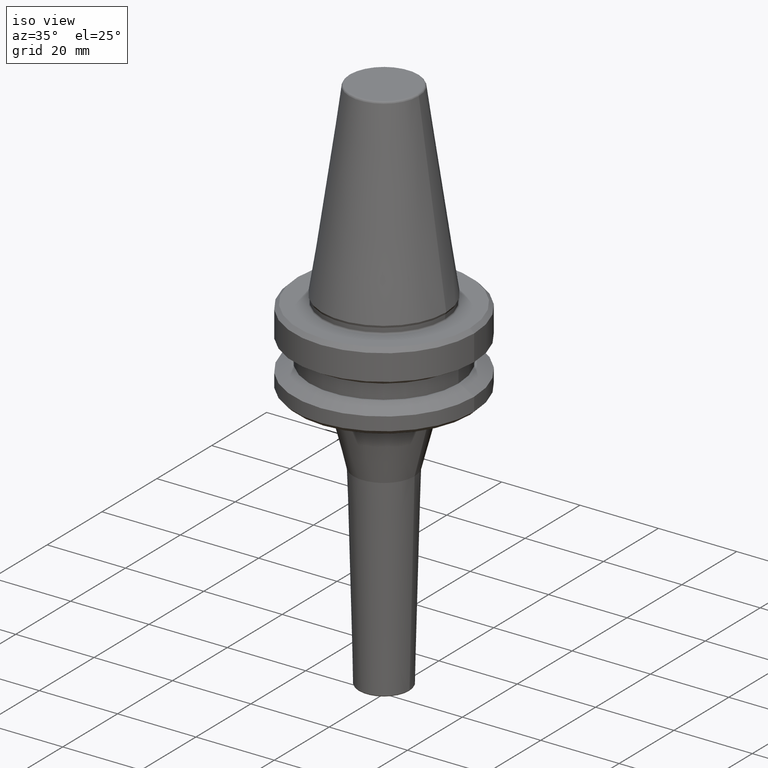
[diagram: clean part render]
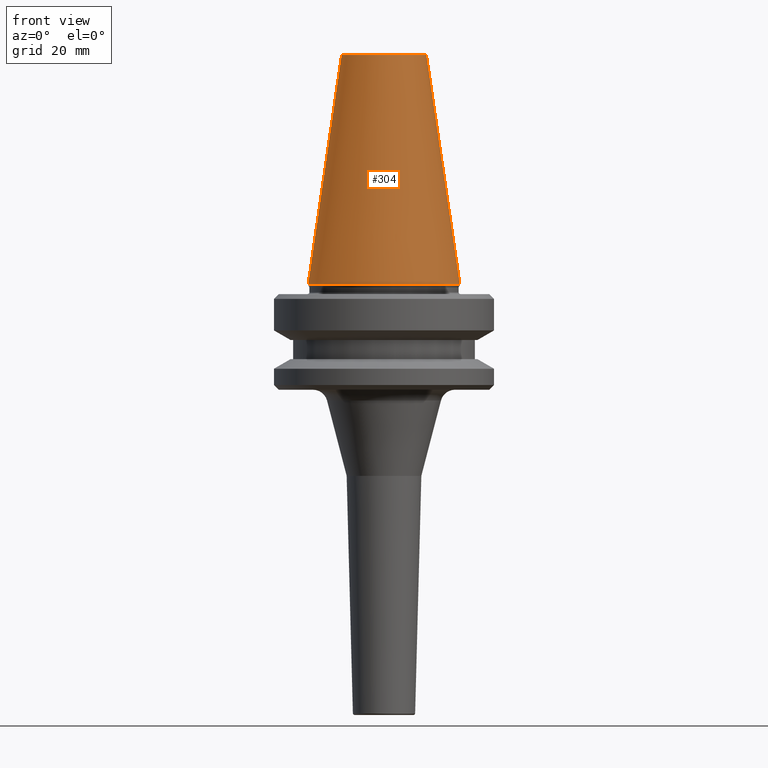
[diagram: tour spotlight — one face highlighted and labeled with its STEP entity id]
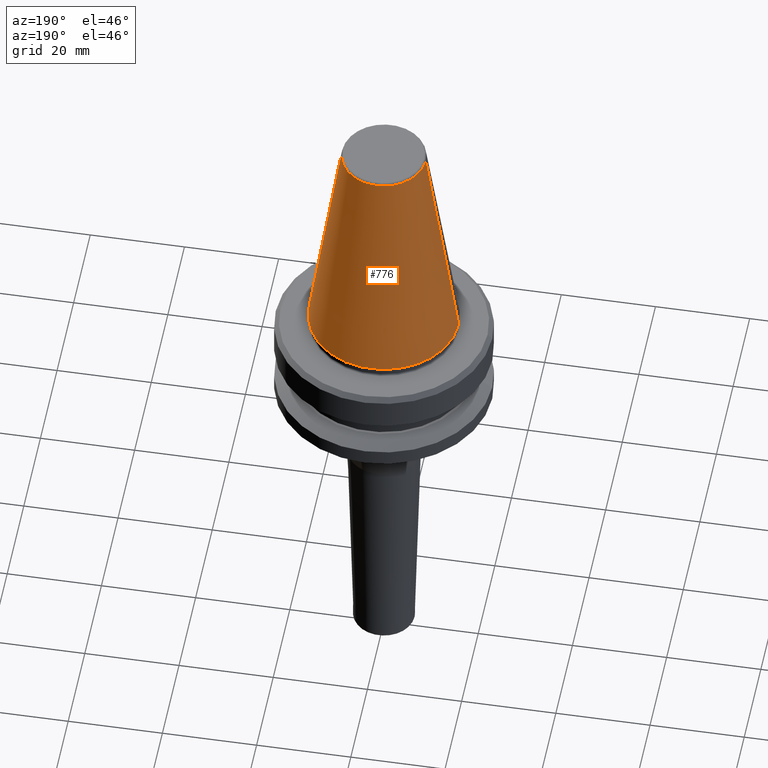
[diagram: tour spotlight — one face highlighted and labeled with its STEP entity id]
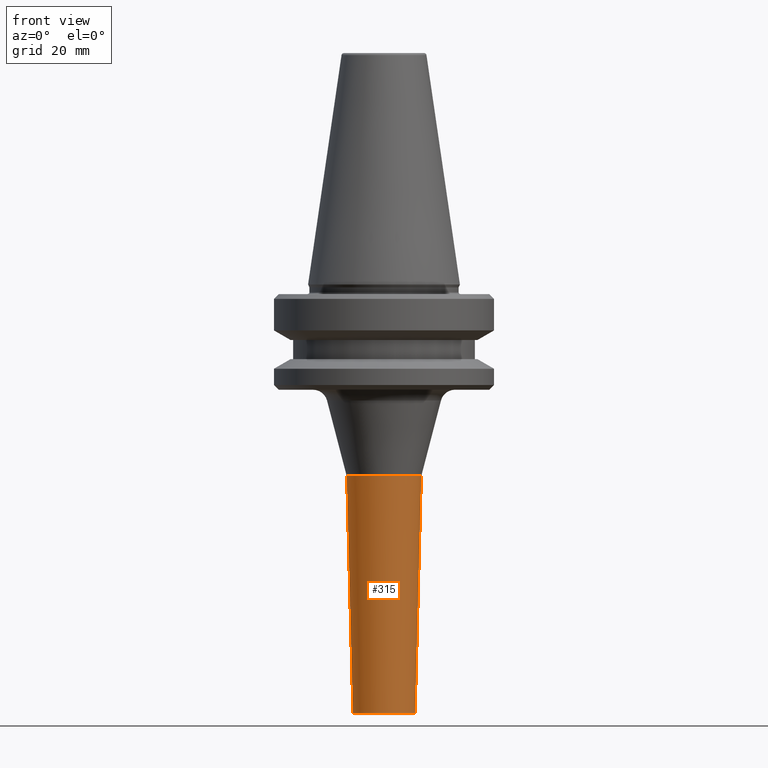
[diagram: tour spotlight — one face highlighted and labeled with its STEP entity id]
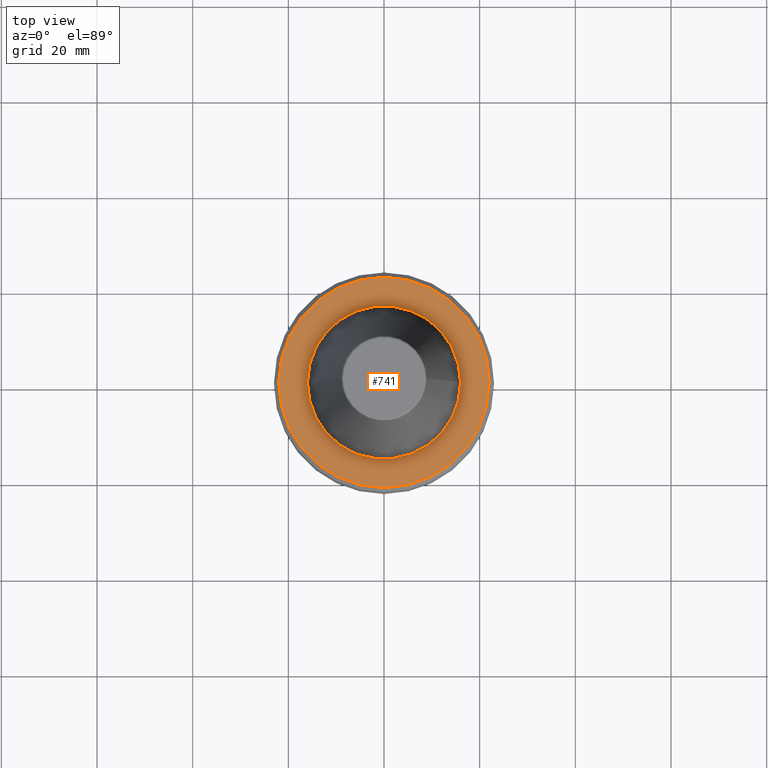
[diagram: tour spotlight — one face highlighted and labeled with its STEP entity id]
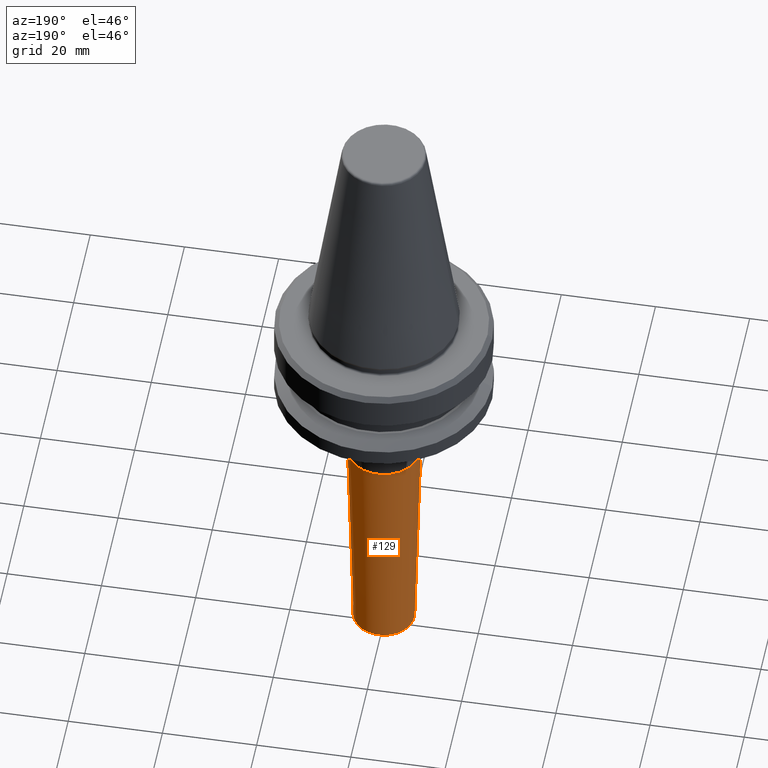
[diagram: tour spotlight — one face highlighted and labeled with its STEP entity id]
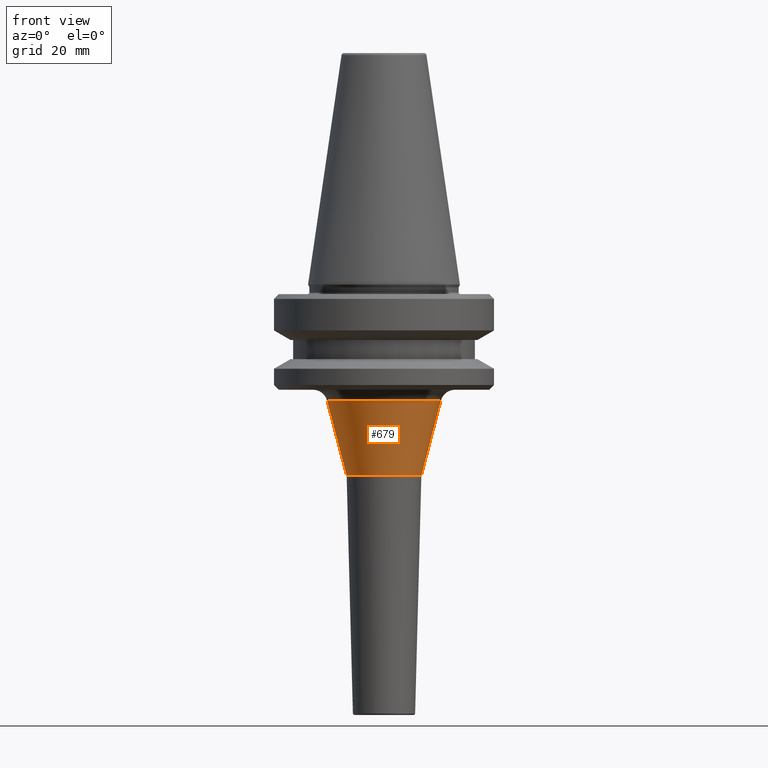
[diagram: tour spotlight — one face highlighted and labeled with its STEP entity id]
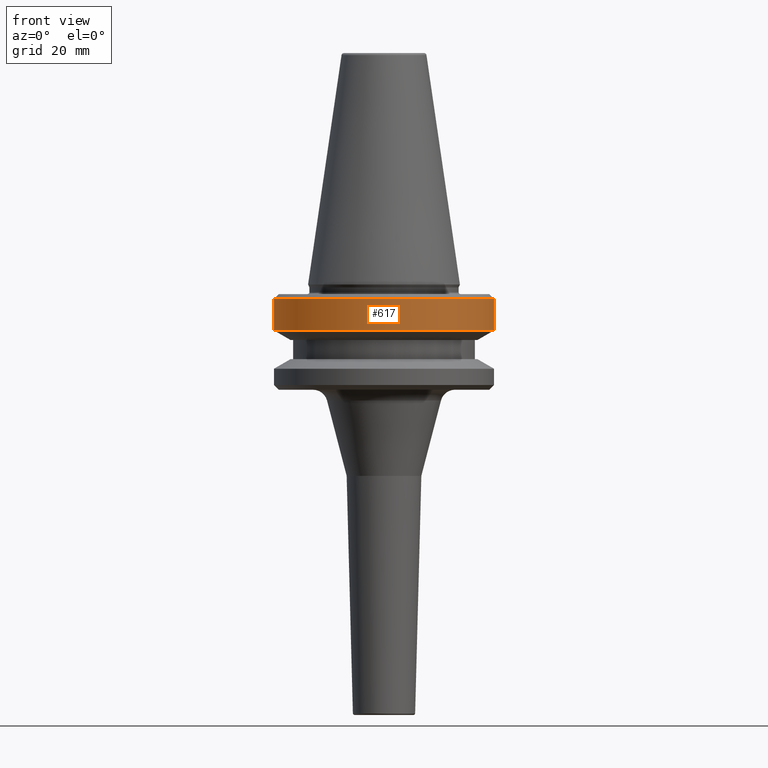
[diagram: tour spotlight — one face highlighted and labeled with its STEP entity id]
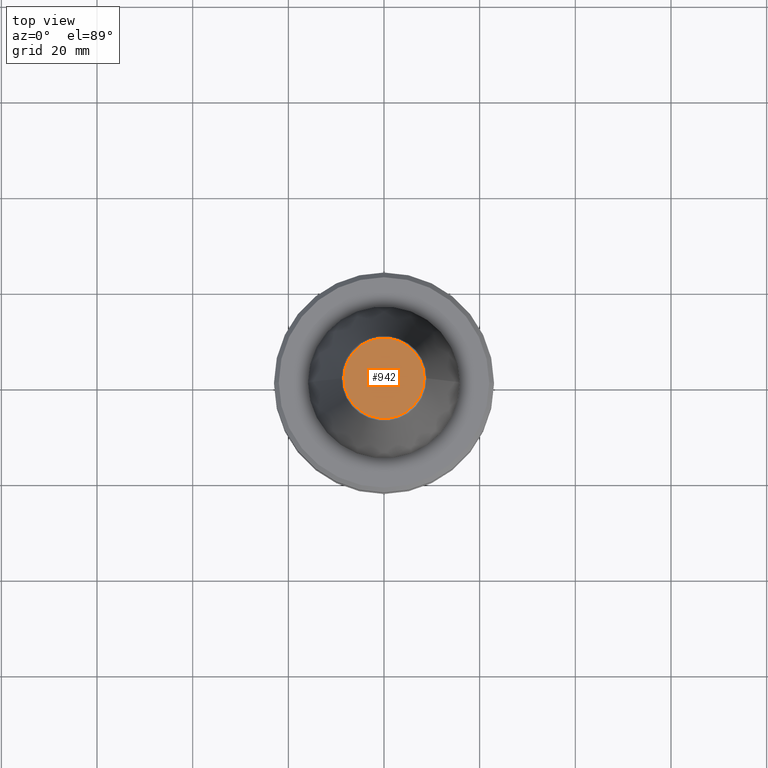
[diagram: tour spotlight — one face highlighted and labeled with its STEP entity id]
A machine part: a face-by-face anatomy tour. The part has 38 B-rep faces; the first image is the clean iso view, then the 8 largest visible faces are spotlighted one at a time (largest first), each with its STEP entity span.

Face 1 — front view, entity #304. In plain terms, the highlighted conical surface has half-angle 8.297 deg.
Definition (entity closure, byte-faithful):
#1 = CIRCLE ( 'NONE', #175, 15.87500000000002800 ) ;
#11 = CIRCLE ( 'NONE', #629, 8.878994820583560700 ) ;
#114 = VECTOR ( 'NONE', #711, 1000.000000000000100 ) ;
#133 = DIRECTION ( 'NONE',  ( 1.000000000000000000, 0.0000000000000000000, 0.0000000000000000000 ) ) ;
#166 = DIRECTION ( 'NONE',  ( 0.0000000000000000000, 0.0000000000000000000, -1.000000000000000000 ) ) ;
#175 = AXIS2_PLACEMENT_3D ( 'NONE', #1046, #481, #876 ) ;
#179 = EDGE_CURVE ( 'NONE', #1000, #436, #330, .T. ) ;
#205 = FACE_OUTER_BOUND ( 'NONE', #483, .T. ) ;
#262 = CARTESIAN_POINT ( 'NONE',  ( -15.87500000000002800, 1.944126793646426800E-015, 0.0000000000000000000 ) ) ;
#283 = ORIENTED_EDGE ( 'NONE', *, *, #431, .T. ) ;
#286 = DIRECTION ( 'NONE',  ( -0.0000000000000000000, -0.0000000000000000000, 1.000000000000000000 ) ) ;
#304 = ADVANCED_FACE ( 'NONE', ( #205 ), #519, .T. ) ;
#317 = CARTESIAN_POINT ( 'NONE',  ( 15.87500000000002800, 1.944126793646426800E-015, 0.0000000000000000000 ) ) ;
#330 = LINE ( 'NONE', #966, #114 ) ;
#337 = VECTOR ( 'NONE', #952, 1000.000000000000100 ) ;
#353 = EDGE_CURVE ( 'NONE', #755, #1028, #592, .T. ) ;
#413 = ORIENTED_EDGE ( 'NONE', *, *, #179, .T. ) ;
#431 = EDGE_CURVE ( 'NONE', #436, #1028, #1, .T. ) ;
#436 = VERTEX_POINT ( 'NONE', #262 ) ;
#481 = DIRECTION ( 'NONE',  ( -0.0000000000000000000, -0.0000000000000000000, 1.000000000000000000 ) ) ;
#483 = EDGE_LOOP ( 'NONE', ( #893, #634, #413, #283 ) ) ;
#519 = CONICAL_SURFACE ( 'NONE', #669, 15.87500000000002800, 0.1448138461595632500 ) ;
#521 = CARTESIAN_POINT ( 'NONE',  ( 15.87500000000002800, 0.0000000000000000000, 0.0000000000000000000 ) ) ;
#567 = DIRECTION ( 'NONE',  ( -1.000000000000000000, 0.0000000000000000000, 0.0000000000000000000 ) ) ;
#592 = LINE ( 'NONE', #317, #337 ) ;
#629 = AXIS2_PLACEMENT_3D ( 'NONE', #831, #286, #133 ) ;
#633 = CARTESIAN_POINT ( 'NONE',  ( 0.0000000000000000000, 0.0000000000000000000, 0.0000000000000000000 ) ) ;
#634 = ORIENTED_EDGE ( 'NONE', *, *, #659, .F. ) ;
#659 = EDGE_CURVE ( 'NONE', #1000, #755, #11, .T. ) ;
#669 = AXIS2_PLACEMENT_3D ( 'NONE', #633, #166, #567 ) ;
#680 = CARTESIAN_POINT ( 'NONE',  ( 8.878994820583560700, 1.515745026156892700E-015, 47.97215411344124900 ) ) ;
#711 = DIRECTION ( 'NONE',  ( -0.1443082268835109400, 0.0000000000000000000, -0.9895327865481451400 ) ) ;
#755 = VERTEX_POINT ( 'NONE', #680 ) ;
#831 = CARTESIAN_POINT ( 'NONE',  ( 0.0000000000000000000, 0.0000000000000000000, 47.97215411344124900 ) ) ;
#876 = DIRECTION ( 'NONE',  ( 1.000000000000000000, 0.0000000000000000000, 0.0000000000000000000 ) ) ;
#893 = ORIENTED_EDGE ( 'NONE', *, *, #353, .F. ) ;
#952 = DIRECTION ( 'NONE',  ( 0.1443082268835109400, 1.767266081435217000E-017, -0.9895327865481451400 ) ) ;
#966 = CARTESIAN_POINT ( 'NONE',  ( -15.87500000000002800, 0.0000000000000000000, 0.0000000000000000000 ) ) ;
#1000 = VERTEX_POINT ( 'NONE', #1004 ) ;
#1004 = CARTESIAN_POINT ( 'NONE',  ( -8.878994820583560700, 0.0000000000000000000, 47.97215411344124900 ) ) ;
#1028 = VERTEX_POINT ( 'NONE', #521 ) ;
#1046 = CARTESIAN_POINT ( 'NONE',  ( 0.0000000000000000000, 0.0000000000000000000, 0.0000000000000000000 ) ) ;

Face 2 — auxiliary view, entity #776. In plain terms, the highlighted conical surface has half-angle 8.297 deg.
Definition (entity closure, byte-faithful):
#40 = ORIENTED_EDGE ( 'NONE', *, *, #268, .T. ) ;
#114 = VECTOR ( 'NONE', #711, 1000.000000000000100 ) ;
#119 = EDGE_CURVE ( 'NONE', #755, #1000, #586, .T. ) ;
#121 = CONICAL_SURFACE ( 'NONE', #267, 15.87500000000002800, 0.1448138461595632500 ) ;
#150 = AXIS2_PLACEMENT_3D ( 'NONE', #676, #557, #1041 ) ;
#179 = EDGE_CURVE ( 'NONE', #1000, #436, #330, .T. ) ;
#258 = CIRCLE ( 'NONE', #367, 15.87500000000002800 ) ;
#262 = CARTESIAN_POINT ( 'NONE',  ( -15.87500000000002800, 1.944126793646426800E-015, 0.0000000000000000000 ) ) ;
#267 = AXIS2_PLACEMENT_3D ( 'NONE', #531, #610, #683 ) ;
#268 = EDGE_CURVE ( 'NONE', #1028, #436, #258, .T. ) ;
#317 = CARTESIAN_POINT ( 'NONE',  ( 15.87500000000002800, 1.944126793646426800E-015, 0.0000000000000000000 ) ) ;
#330 = LINE ( 'NONE', #966, #114 ) ;
#337 = VECTOR ( 'NONE', #952, 1000.000000000000100 ) ;
#351 = ORIENTED_EDGE ( 'NONE', *, *, #353, .T. ) ;
#353 = EDGE_CURVE ( 'NONE', #755, #1028, #592, .T. ) ;
#367 = AXIS2_PLACEMENT_3D ( 'NONE', #970, #412, #866 ) ;
#412 = DIRECTION ( 'NONE',  ( -0.0000000000000000000, -0.0000000000000000000, 1.000000000000000000 ) ) ;
#425 = ORIENTED_EDGE ( 'NONE', *, *, #119, .F. ) ;
#434 = FACE_OUTER_BOUND ( 'NONE', #579, .T. ) ;
#436 = VERTEX_POINT ( 'NONE', #262 ) ;
#521 = CARTESIAN_POINT ( 'NONE',  ( 15.87500000000002800, 0.0000000000000000000, 0.0000000000000000000 ) ) ;
#531 = CARTESIAN_POINT ( 'NONE',  ( 0.0000000000000000000, 0.0000000000000000000, 0.0000000000000000000 ) ) ;
#557 = DIRECTION ( 'NONE',  ( -0.0000000000000000000, -0.0000000000000000000, 1.000000000000000000 ) ) ;
#579 = EDGE_LOOP ( 'NONE', ( #425, #351, #40, #963 ) ) ;
#586 = CIRCLE ( 'NONE', #150, 8.878994820583560700 ) ;
#592 = LINE ( 'NONE', #317, #337 ) ;
#610 = DIRECTION ( 'NONE',  ( 0.0000000000000000000, 0.0000000000000000000, -1.000000000000000000 ) ) ;
#676 = CARTESIAN_POINT ( 'NONE',  ( 0.0000000000000000000, 0.0000000000000000000, 47.97215411344124900 ) ) ;
#680 = CARTESIAN_POINT ( 'NONE',  ( 8.878994820583560700, 1.515745026156892700E-015, 47.97215411344124900 ) ) ;
#683 = DIRECTION ( 'NONE',  ( -1.000000000000000000, 0.0000000000000000000, 0.0000000000000000000 ) ) ;
#711 = DIRECTION ( 'NONE',  ( -0.1443082268835109400, 0.0000000000000000000, -0.9895327865481451400 ) ) ;
#755 = VERTEX_POINT ( 'NONE', #680 ) ;
#776 = ADVANCED_FACE ( 'NONE', ( #434 ), #121, .T. ) ;
#866 = DIRECTION ( 'NONE',  ( 1.000000000000000000, 0.0000000000000000000, 0.0000000000000000000 ) ) ;
#952 = DIRECTION ( 'NONE',  ( 0.1443082268835109400, 1.767266081435217000E-017, -0.9895327865481451400 ) ) ;
#963 = ORIENTED_EDGE ( 'NONE', *, *, #179, .F. ) ;
#966 = CARTESIAN_POINT ( 'NONE',  ( -15.87500000000002800, 0.0000000000000000000, 0.0000000000000000000 ) ) ;
#970 = CARTESIAN_POINT ( 'NONE',  ( 0.0000000000000000000, 0.0000000000000000000, 0.0000000000000000000 ) ) ;
#1000 = VERTEX_POINT ( 'NONE', #1004 ) ;
#1004 = CARTESIAN_POINT ( 'NONE',  ( -8.878994820583560700, 0.0000000000000000000, 47.97215411344124900 ) ) ;
#1028 = VERTEX_POINT ( 'NONE', #521 ) ;
#1041 = DIRECTION ( 'NONE',  ( 1.000000000000000000, 0.0000000000000000000, 0.0000000000000000000 ) ) ;

Face 3 — front view, entity #315. In plain terms, the highlighted conical surface has half-angle 1.5 deg.
Definition (entity closure, byte-faithful):
#19 = DIRECTION ( 'NONE',  ( -0.0000000000000000000, -0.0000000000000000000, 1.000000000000000000 ) ) ;
#21 = DIRECTION ( 'NONE',  ( 1.000000000000000000, 0.0000000000000000000, 0.0000000000000000000 ) ) ;
#28 = EDGE_LOOP ( 'NONE', ( #58, #892, #366, #618 ) ) ;
#58 = ORIENTED_EDGE ( 'NONE', *, *, #72, .F. ) ;
#72 = EDGE_CURVE ( 'NONE', #646, #471, #402, .T. ) ;
#103 = VERTEX_POINT ( 'NONE', #561 ) ;
#170 = CIRCLE ( 'NONE', #240, 7.809296078459246000 ) ;
#177 = DIRECTION ( 'NONE',  ( 1.000000000000000000, 0.0000000000000000000, 0.0000000000000000000 ) ) ;
#182 = CARTESIAN_POINT ( 'NONE',  ( 0.0000000000000000000, 0.0000000000000000000, -89.67947039659931400 ) ) ;
#240 = AXIS2_PLACEMENT_3D ( 'NONE', #435, #355, #21 ) ;
#255 = DIRECTION ( 'NONE',  ( -0.02617694830787338800, 3.205751595668287100E-018, 0.9996573249755572600 ) ) ;
#315 = ADVANCED_FACE ( 'NONE', ( #974 ), #972, .T. ) ;
#318 = VERTEX_POINT ( 'NONE', #872 ) ;
#355 = DIRECTION ( 'NONE',  ( -0.0000000000000000000, -0.0000000000000000000, 1.000000000000000000 ) ) ;
#358 = DIRECTION ( 'NONE',  ( 1.000000000000000000, 0.0000000000000000000, 0.0000000000000000000 ) ) ;
#366 = ORIENTED_EDGE ( 'NONE', *, *, #857, .T. ) ;
#388 = DIRECTION ( 'NONE',  ( 0.02617694830787338800, 0.0000000000000000000, 0.9996573249755572600 ) ) ;
#402 = LINE ( 'NONE', #407, #424 ) ;
#407 = CARTESIAN_POINT ( 'NONE',  ( -6.508393363055142300, 7.970483099657357400E-016, -89.67947039659931400 ) ) ;
#424 = VECTOR ( 'NONE', #255, 1000.000000000000200 ) ;
#433 = CARTESIAN_POINT ( 'NONE',  ( 0.0000000000000000000, 0.0000000000000000000, -89.67947039659931400 ) ) ;
#435 = CARTESIAN_POINT ( 'NONE',  ( 0.0000000000000000000, 0.0000000000000000000, -40.00000000000003600 ) ) ;
#471 = VERTEX_POINT ( 'NONE', #558 ) ;
#558 = CARTESIAN_POINT ( 'NONE',  ( -7.809296078459246000, 9.563629446079093900E-016, -40.00000000000003600 ) ) ;
#561 = CARTESIAN_POINT ( 'NONE',  ( 6.508393363055141400, 0.0000000000000000000, -89.67947039659931400 ) ) ;
#573 = EDGE_CURVE ( 'NONE', #471, #318, #170, .T. ) ;
#600 = CARTESIAN_POINT ( 'NONE',  ( -6.508393363055141400, 7.970483099657356400E-016, -89.67947039659931400 ) ) ;
#611 = EDGE_CURVE ( 'NONE', #646, #103, #899, .T. ) ;
#618 = ORIENTED_EDGE ( 'NONE', *, *, #573, .F. ) ;
#637 = AXIS2_PLACEMENT_3D ( 'NONE', #433, #19, #358 ) ;
#646 = VERTEX_POINT ( 'NONE', #600 ) ;
#704 = DIRECTION ( 'NONE',  ( -0.0000000000000000000, -0.0000000000000000000, 1.000000000000000000 ) ) ;
#813 = VECTOR ( 'NONE', #388, 1000.000000000000200 ) ;
#857 = EDGE_CURVE ( 'NONE', #103, #318, #886, .T. ) ;
#872 = CARTESIAN_POINT ( 'NONE',  ( 7.809296078459246000, 0.0000000000000000000, -40.00000000000003600 ) ) ;
#886 = LINE ( 'NONE', #941, #813 ) ;
#892 = ORIENTED_EDGE ( 'NONE', *, *, #611, .T. ) ;
#899 = CIRCLE ( 'NONE', #637, 6.508393363055142300 ) ;
#941 = CARTESIAN_POINT ( 'NONE',  ( 6.508393363055142300, 0.0000000000000000000, -89.67947039659931400 ) ) ;
#944 = AXIS2_PLACEMENT_3D ( 'NONE', #182, #704, #177 ) ;
#972 = CONICAL_SURFACE ( 'NONE', #944, 6.508393363055142300, 0.02617993877991518100 ) ;
#974 = FACE_OUTER_BOUND ( 'NONE', #28, .T. ) ;

Face 4 — top view, entity #741. In plain terms, the highlighted planar face has unit normal (0, 0, -1).
Definition (entity closure, byte-faithful):
#2 = EDGE_LOOP ( 'NONE', ( #732, #693 ) ) ;
#38 = CIRCLE ( 'NONE', #343, 16.00000000000045800 ) ;
#39 = CIRCLE ( 'NONE', #798, 22.00000000000002100 ) ;
#47 = CARTESIAN_POINT ( 'NONE',  ( 0.0000000000000000000, 0.0000000000000000000, -2.000000000000223800 ) ) ;
#78 = CARTESIAN_POINT ( 'NONE',  ( 0.0000000000000000000, 0.0000000000000000000, -2.000000000000223800 ) ) ;
#96 = EDGE_CURVE ( 'NONE', #520, #817, #38, .T. ) ;
#136 = CARTESIAN_POINT ( 'NONE',  ( 16.00000000000054000, 0.0000000000000000000, -2.000000000000244700 ) ) ;
#137 = CIRCLE ( 'NONE', #202, 16.00000000000045800 ) ;
#165 = AXIS2_PLACEMENT_3D ( 'NONE', #373, #926, #457 ) ;
#202 = AXIS2_PLACEMENT_3D ( 'NONE', #450, #1006, #527 ) ;
#207 = EDGE_LOOP ( 'NONE', ( #882, #236 ) ) ;
#228 = PLANE ( 'NONE',  #275 ) ;
#236 = ORIENTED_EDGE ( 'NONE', *, *, #757, .T. ) ;
#275 = AXIS2_PLACEMENT_3D ( 'NONE', #937, #867, #1033 ) ;
#309 = CARTESIAN_POINT ( 'NONE',  ( -22.00000000000002100, 0.0000000000000000000, -2.000000000000223800 ) ) ;
#343 = AXIS2_PLACEMENT_3D ( 'NONE', #47, #858, #410 ) ;
#373 = CARTESIAN_POINT ( 'NONE',  ( 0.0000000000000000000, 0.0000000000000000000, -2.000000000000223800 ) ) ;
#397 = DIRECTION ( 'NONE',  ( -0.0000000000000000000, -0.0000000000000000000, 1.000000000000000000 ) ) ;
#410 = DIRECTION ( 'NONE',  ( 1.000000000000000000, 0.0000000000000000000, 0.0000000000000000000 ) ) ;
#427 = CARTESIAN_POINT ( 'NONE',  ( -16.00000000000054000, 1.959434878635831400E-015, -2.000000000000244700 ) ) ;
#447 = EDGE_CURVE ( 'NONE', #842, #868, #39, .T. ) ;
#450 = CARTESIAN_POINT ( 'NONE',  ( 0.0000000000000000000, 0.0000000000000000000, -2.000000000000223800 ) ) ;
#457 = DIRECTION ( 'NONE',  ( 1.000000000000000000, 0.0000000000000000000, 0.0000000000000000000 ) ) ;
#467 = CIRCLE ( 'NONE', #165, 22.00000000000002100 ) ;
#497 = DIRECTION ( 'NONE',  ( 1.000000000000000000, 0.0000000000000000000, 0.0000000000000000000 ) ) ;
#520 = VERTEX_POINT ( 'NONE', #427 ) ;
#527 = DIRECTION ( 'NONE',  ( 1.000000000000000000, 0.0000000000000000000, 0.0000000000000000000 ) ) ;
#688 = FACE_OUTER_BOUND ( 'NONE', #207, .T. ) ;
#693 = ORIENTED_EDGE ( 'NONE', *, *, #96, .F. ) ;
#732 = ORIENTED_EDGE ( 'NONE', *, *, #1030, .F. ) ;
#741 = ADVANCED_FACE ( 'NONE', ( #875, #688 ), #228, .F. ) ;
#757 = EDGE_CURVE ( 'NONE', #868, #842, #467, .T. ) ;
#798 = AXIS2_PLACEMENT_3D ( 'NONE', #78, #397, #497 ) ;
#817 = VERTEX_POINT ( 'NONE', #136 ) ;
#842 = VERTEX_POINT ( 'NONE', #309 ) ;
#858 = DIRECTION ( 'NONE',  ( -0.0000000000000000000, -0.0000000000000000000, 1.000000000000000000 ) ) ;
#867 = DIRECTION ( 'NONE',  ( 0.0000000000000000000, 0.0000000000000000000, -1.000000000000000000 ) ) ;
#868 = VERTEX_POINT ( 'NONE', #1027 ) ;
#875 = FACE_BOUND ( 'NONE', #2, .T. ) ;
#882 = ORIENTED_EDGE ( 'NONE', *, *, #447, .T. ) ;
#926 = DIRECTION ( 'NONE',  ( -0.0000000000000000000, -0.0000000000000000000, 1.000000000000000000 ) ) ;
#937 = CARTESIAN_POINT ( 'NONE',  ( 0.0000000000000000000, 22.00000000000002100, -2.000000000000223800 ) ) ;
#1006 = DIRECTION ( 'NONE',  ( -0.0000000000000000000, -0.0000000000000000000, 1.000000000000000000 ) ) ;
#1027 = CARTESIAN_POINT ( 'NONE',  ( 22.00000000000002100, 2.755455298081547100E-015, -2.000000000000223800 ) ) ;
#1030 = EDGE_CURVE ( 'NONE', #817, #520, #137, .T. ) ;
#1033 = DIRECTION ( 'NONE',  ( -1.000000000000000000, 0.0000000000000000000, -0.0000000000000000000 ) ) ;

Face 5 — auxiliary view, entity #129. In plain terms, the highlighted conical surface has half-angle 1.5 deg.
Definition (entity closure, byte-faithful):
#26 = ORIENTED_EDGE ( 'NONE', *, *, #674, .T. ) ;
#72 = EDGE_CURVE ( 'NONE', #646, #471, #402, .T. ) ;
#103 = VERTEX_POINT ( 'NONE', #561 ) ;
#129 = ADVANCED_FACE ( 'NONE', ( #801 ), #349, .T. ) ;
#131 = DIRECTION ( 'NONE',  ( -0.0000000000000000000, -0.0000000000000000000, 1.000000000000000000 ) ) ;
#139 = DIRECTION ( 'NONE',  ( -0.0000000000000000000, -0.0000000000000000000, 1.000000000000000000 ) ) ;
#255 = DIRECTION ( 'NONE',  ( -0.02617694830787338800, 3.205751595668287100E-018, 0.9996573249755572600 ) ) ;
#299 = CIRCLE ( 'NONE', #929, 7.809296078459246000 ) ;
#318 = VERTEX_POINT ( 'NONE', #872 ) ;
#349 = CONICAL_SURFACE ( 'NONE', #740, 6.508393363055142300, 0.02617993877991518100 ) ;
#371 = DIRECTION ( 'NONE',  ( 1.000000000000000000, 0.0000000000000000000, 0.0000000000000000000 ) ) ;
#388 = DIRECTION ( 'NONE',  ( 0.02617694830787338800, 0.0000000000000000000, 0.9996573249755572600 ) ) ;
#402 = LINE ( 'NONE', #407, #424 ) ;
#407 = CARTESIAN_POINT ( 'NONE',  ( -6.508393363055142300, 7.970483099657357400E-016, -89.67947039659931400 ) ) ;
#424 = VECTOR ( 'NONE', #255, 1000.000000000000200 ) ;
#444 = CARTESIAN_POINT ( 'NONE',  ( 0.0000000000000000000, 0.0000000000000000000, -89.67947039659931400 ) ) ;
#453 = ORIENTED_EDGE ( 'NONE', *, *, #682, .F. ) ;
#469 = CARTESIAN_POINT ( 'NONE',  ( 0.0000000000000000000, 0.0000000000000000000, -40.00000000000003600 ) ) ;
#471 = VERTEX_POINT ( 'NONE', #558 ) ;
#487 = CARTESIAN_POINT ( 'NONE',  ( 0.0000000000000000000, 0.0000000000000000000, -89.67947039659931400 ) ) ;
#558 = CARTESIAN_POINT ( 'NONE',  ( -7.809296078459246000, 9.563629446079093900E-016, -40.00000000000003600 ) ) ;
#561 = CARTESIAN_POINT ( 'NONE',  ( 6.508393363055141400, 0.0000000000000000000, -89.67947039659931400 ) ) ;
#600 = CARTESIAN_POINT ( 'NONE',  ( -6.508393363055141400, 7.970483099657356400E-016, -89.67947039659931400 ) ) ;
#646 = VERTEX_POINT ( 'NONE', #600 ) ;
#655 = ORIENTED_EDGE ( 'NONE', *, *, #857, .F. ) ;
#674 = EDGE_CURVE ( 'NONE', #103, #646, #959, .T. ) ;
#682 = EDGE_CURVE ( 'NONE', #318, #471, #299, .T. ) ;
#690 = DIRECTION ( 'NONE',  ( 1.000000000000000000, 0.0000000000000000000, 0.0000000000000000000 ) ) ;
#695 = ORIENTED_EDGE ( 'NONE', *, *, #72, .T. ) ;
#740 = AXIS2_PLACEMENT_3D ( 'NONE', #487, #131, #999 ) ;
#747 = AXIS2_PLACEMENT_3D ( 'NONE', #444, #996, #371 ) ;
#801 = FACE_OUTER_BOUND ( 'NONE', #919, .T. ) ;
#813 = VECTOR ( 'NONE', #388, 1000.000000000000200 ) ;
#857 = EDGE_CURVE ( 'NONE', #103, #318, #886, .T. ) ;
#872 = CARTESIAN_POINT ( 'NONE',  ( 7.809296078459246000, 0.0000000000000000000, -40.00000000000003600 ) ) ;
#886 = LINE ( 'NONE', #941, #813 ) ;
#919 = EDGE_LOOP ( 'NONE', ( #26, #695, #453, #655 ) ) ;
#929 = AXIS2_PLACEMENT_3D ( 'NONE', #469, #139, #690 ) ;
#941 = CARTESIAN_POINT ( 'NONE',  ( 6.508393363055142300, 0.0000000000000000000, -89.67947039659931400 ) ) ;
#959 = CIRCLE ( 'NONE', #747, 6.508393363055142300 ) ;
#996 = DIRECTION ( 'NONE',  ( -0.0000000000000000000, -0.0000000000000000000, 1.000000000000000000 ) ) ;
#999 = DIRECTION ( 'NONE',  ( 1.000000000000000000, 0.0000000000000000000, 0.0000000000000000000 ) ) ;

Face 6 — front view, entity #679. In plain terms, the highlighted conical surface has half-angle 14.606 deg.
Definition (entity closure, byte-faithful):
#7 = EDGE_LOOP ( 'NONE', ( #16, #125, #609, #622 ) ) ;
#16 = ORIENTED_EDGE ( 'NONE', *, *, #522, .F. ) ;
#18 = VERTEX_POINT ( 'NONE', #956 ) ;
#21 = DIRECTION ( 'NONE',  ( 1.000000000000000000, 0.0000000000000000000, 0.0000000000000000000 ) ) ;
#30 = DIRECTION ( 'NONE',  ( -0.2521728199895472100, 3.088226368321606600E-017, 0.9676822148094483800 ) ) ;
#70 = CARTESIAN_POINT ( 'NONE',  ( 11.91536068568180300, 0.0000000000000000000, -24.24348154003075400 ) ) ;
#83 = CONICAL_SURFACE ( 'NONE', #692, 7.809296078459246000, 0.2549249863712674800 ) ;
#111 = AXIS2_PLACEMENT_3D ( 'NONE', #595, #429, #515 ) ;
#125 = ORIENTED_EDGE ( 'NONE', *, *, #573, .T. ) ;
#170 = CIRCLE ( 'NONE', #240, 7.809296078459246000 ) ;
#194 = LINE ( 'NONE', #891, #448 ) ;
#240 = AXIS2_PLACEMENT_3D ( 'NONE', #435, #355, #21 ) ;
#276 = DIRECTION ( 'NONE',  ( 0.2521728199895472100, 0.0000000000000000000, 0.9676822148094483800 ) ) ;
#290 = DIRECTION ( 'NONE',  ( 1.000000000000000000, 0.0000000000000000000, 0.0000000000000000000 ) ) ;
#318 = VERTEX_POINT ( 'NONE', #872 ) ;
#328 = FACE_OUTER_BOUND ( 'NONE', #7, .T. ) ;
#355 = DIRECTION ( 'NONE',  ( -0.0000000000000000000, -0.0000000000000000000, 1.000000000000000000 ) ) ;
#380 = VERTEX_POINT ( 'NONE', #70 ) ;
#429 = DIRECTION ( 'NONE',  ( -0.0000000000000000000, -0.0000000000000000000, 1.000000000000000000 ) ) ;
#435 = CARTESIAN_POINT ( 'NONE',  ( 0.0000000000000000000, 0.0000000000000000000, -40.00000000000003600 ) ) ;
#448 = VECTOR ( 'NONE', #276, 1000.000000000000000 ) ;
#471 = VERTEX_POINT ( 'NONE', #558 ) ;
#515 = DIRECTION ( 'NONE',  ( 1.000000000000000000, 0.0000000000000000000, 0.0000000000000000000 ) ) ;
#522 = EDGE_CURVE ( 'NONE', #471, #18, #653, .T. ) ;
#526 = CARTESIAN_POINT ( 'NONE',  ( 0.0000000000000000000, 0.0000000000000000000, -40.00000000000003600 ) ) ;
#539 = EDGE_CURVE ( 'NONE', #318, #380, #194, .T. ) ;
#558 = CARTESIAN_POINT ( 'NONE',  ( -7.809296078459246000, 9.563629446079093900E-016, -40.00000000000003600 ) ) ;
#573 = EDGE_CURVE ( 'NONE', #471, #318, #170, .T. ) ;
#595 = CARTESIAN_POINT ( 'NONE',  ( 0.0000000000000000000, 0.0000000000000000000, -24.24348154003075400 ) ) ;
#603 = EDGE_CURVE ( 'NONE', #18, #380, #764, .T. ) ;
#609 = ORIENTED_EDGE ( 'NONE', *, *, #539, .T. ) ;
#622 = ORIENTED_EDGE ( 'NONE', *, *, #603, .F. ) ;
#653 = LINE ( 'NONE', #742, #788 ) ;
#679 = ADVANCED_FACE ( 'NONE', ( #328 ), #83, .T. ) ;
#692 = AXIS2_PLACEMENT_3D ( 'NONE', #526, #1005, #290 ) ;
#742 = CARTESIAN_POINT ( 'NONE',  ( -7.809296078459246000, 9.563629446079093900E-016, -40.00000000000003600 ) ) ;
#764 = CIRCLE ( 'NONE', #111, 11.91536068568180300 ) ;
#788 = VECTOR ( 'NONE', #30, 1000.000000000000000 ) ;
#872 = CARTESIAN_POINT ( 'NONE',  ( 7.809296078459246000, 0.0000000000000000000, -40.00000000000003600 ) ) ;
#891 = CARTESIAN_POINT ( 'NONE',  ( 7.809296078459246000, 0.0000000000000000000, -40.00000000000003600 ) ) ;
#956 = CARTESIAN_POINT ( 'NONE',  ( -11.91536068568180300, 1.459210832440643100E-015, -24.24348154003075400 ) ) ;
#1005 = DIRECTION ( 'NONE',  ( -0.0000000000000000000, -0.0000000000000000000, 1.000000000000000000 ) ) ;

Face 7 — front view, entity #617. In plain terms, the highlighted cylindrical surface (partial cylindrical patch) has radius 23 mm, axis along (-0, -0, 1).
Definition (entity closure, byte-faithful):
#56 = DIRECTION ( 'NONE',  ( 1.000000000000000000, 0.0000000000000000000, 0.0000000000000000000 ) ) ;
#77 = CARTESIAN_POINT ( 'NONE',  ( 0.0000000000000000000, 0.0000000000000000000, -9.600117335054836300 ) ) ;
#138 = CYLINDRICAL_SURFACE ( 'NONE', #188, 23.00000000000002100 ) ;
#188 = AXIS2_PLACEMENT_3D ( 'NONE', #927, #442, #613 ) ;
#208 = ORIENTED_EDGE ( 'NONE', *, *, #248, .T. ) ;
#247 = AXIS2_PLACEMENT_3D ( 'NONE', #77, #638, #252 ) ;
#248 = EDGE_CURVE ( 'NONE', #705, #807, #361, .T. ) ;
#252 = DIRECTION ( 'NONE',  ( 1.000000000000000000, 0.0000000000000000000, 0.0000000000000000000 ) ) ;
#259 = ORIENTED_EDGE ( 'NONE', *, *, #530, .F. ) ;
#361 = CIRCLE ( 'NONE', #247, 23.00000000000002100 ) ;
#363 = EDGE_LOOP ( 'NONE', ( #259, #208, #778, #809 ) ) ;
#389 = VERTEX_POINT ( 'NONE', #881 ) ;
#440 = VERTEX_POINT ( 'NONE', #713 ) ;
#442 = DIRECTION ( 'NONE',  ( -0.0000000000000000000, -0.0000000000000000000, 1.000000000000000000 ) ) ;
#492 = FACE_OUTER_BOUND ( 'NONE', #363, .T. ) ;
#503 = EDGE_CURVE ( 'NONE', #807, #389, #932, .T. ) ;
#508 = VECTOR ( 'NONE', #906, 1000.000000000000000 ) ;
#518 = CIRCLE ( 'NONE', #715, 23.00000000000002100 ) ;
#530 = EDGE_CURVE ( 'NONE', #705, #440, #1010, .T. ) ;
#542 = DIRECTION ( 'NONE',  ( -0.0000000000000000000, -0.0000000000000000000, 1.000000000000000000 ) ) ;
#613 = DIRECTION ( 'NONE',  ( 1.000000000000000000, 0.0000000000000000000, 0.0000000000000000000 ) ) ;
#616 = CARTESIAN_POINT ( 'NONE',  ( 23.00000000000002100, 0.0000000000000000000, -9.600117335054836300 ) ) ;
#617 = ADVANCED_FACE ( 'NONE', ( #492 ), #138, .T. ) ;
#638 = DIRECTION ( 'NONE',  ( -0.0000000000000000000, -0.0000000000000000000, 1.000000000000000000 ) ) ;
#671 = CARTESIAN_POINT ( 'NONE',  ( 23.00000000000002100, 0.0000000000000000000, 105.6755792788445500 ) ) ;
#705 = VERTEX_POINT ( 'NONE', #1018 ) ;
#713 = CARTESIAN_POINT ( 'NONE',  ( -23.00000000000002100, 2.816687638038915100E-015, -3.000000000000113700 ) ) ;
#715 = AXIS2_PLACEMENT_3D ( 'NONE', #1020, #542, #56 ) ;
#778 = ORIENTED_EDGE ( 'NONE', *, *, #503, .T. ) ;
#795 = EDGE_CURVE ( 'NONE', #440, #389, #518, .T. ) ;
#807 = VERTEX_POINT ( 'NONE', #616 ) ;
#809 = ORIENTED_EDGE ( 'NONE', *, *, #795, .F. ) ;
#816 = DIRECTION ( 'NONE',  ( -0.0000000000000000000, -0.0000000000000000000, 1.000000000000000000 ) ) ;
#881 = CARTESIAN_POINT ( 'NONE',  ( 23.00000000000002100, 0.0000000000000000000, -3.000000000000113700 ) ) ;
#902 = CARTESIAN_POINT ( 'NONE',  ( -23.00000000000002100, 2.816687638038915100E-015, 105.6755792788445500 ) ) ;
#906 = DIRECTION ( 'NONE',  ( -0.0000000000000000000, -0.0000000000000000000, 1.000000000000000000 ) ) ;
#927 = CARTESIAN_POINT ( 'NONE',  ( 0.0000000000000000000, 0.0000000000000000000, 105.6755792788445500 ) ) ;
#932 = LINE ( 'NONE', #671, #1037 ) ;
#1010 = LINE ( 'NONE', #902, #508 ) ;
#1018 = CARTESIAN_POINT ( 'NONE',  ( -23.00000000000002100, 2.816687638038914700E-015, -9.600117335054836300 ) ) ;
#1020 = CARTESIAN_POINT ( 'NONE',  ( 0.0000000000000000000, 0.0000000000000000000, -3.000000000000113700 ) ) ;
#1037 = VECTOR ( 'NONE', #816, 1000.000000000000000 ) ;

Face 8 — top view, entity #942. In plain terms, the highlighted planar face has unit normal (0, 0, -1).
Definition (entity closure, byte-faithful):
#15 = DIRECTION ( 'NONE',  ( -0.0000000000000000000, -0.0000000000000000000, 1.000000000000000000 ) ) ;
#112 = CIRCLE ( 'NONE', #507, 8.384228427309182100 ) ;
#193 = DIRECTION ( 'NONE',  ( 1.000000000000000000, 0.0000000000000000000, 0.0000000000000000000 ) ) ;
#203 = CARTESIAN_POINT ( 'NONE',  ( 0.0000000000000000000, 8.384228427309182100, 48.39999999999956500 ) ) ;
#204 = AXIS2_PLACEMENT_3D ( 'NONE', #203, #749, #284 ) ;
#215 = AXIS2_PLACEMENT_3D ( 'NONE', #1038, #15, #193 ) ;
#237 = EDGE_LOOP ( 'NONE', ( #332, #354 ) ) ;
#284 = DIRECTION ( 'NONE',  ( -1.000000000000000000, 0.0000000000000000000, -0.0000000000000000000 ) ) ;
#332 = ORIENTED_EDGE ( 'NONE', *, *, #734, .T. ) ;
#354 = ORIENTED_EDGE ( 'NONE', *, *, #477, .T. ) ;
#356 = PLANE ( 'NONE',  #204 ) ;
#381 = CARTESIAN_POINT ( 'NONE',  ( -8.384228427309182100, 1.057067554674898900E-015, 48.39999999999958600 ) ) ;
#384 = CARTESIAN_POINT ( 'NONE',  ( 0.0000000000000000000, 0.0000000000000000000, 48.39999999999958600 ) ) ;
#468 = DIRECTION ( 'NONE',  ( 1.000000000000000000, 0.0000000000000000000, 0.0000000000000000000 ) ) ;
#477 = EDGE_CURVE ( 'NONE', #735, #904, #548, .T. ) ;
#507 = AXIS2_PLACEMENT_3D ( 'NONE', #384, #689, #468 ) ;
#548 = CIRCLE ( 'NONE', #215, 8.384228427309182100 ) ;
#605 = FACE_OUTER_BOUND ( 'NONE', #237, .T. ) ;
#689 = DIRECTION ( 'NONE',  ( -0.0000000000000000000, -0.0000000000000000000, 1.000000000000000000 ) ) ;
#699 = CARTESIAN_POINT ( 'NONE',  ( 8.384228427309182100, 0.0000000000000000000, 48.39999999999958600 ) ) ;
#734 = EDGE_CURVE ( 'NONE', #904, #735, #112, .T. ) ;
#735 = VERTEX_POINT ( 'NONE', #381 ) ;
#749 = DIRECTION ( 'NONE',  ( 0.0000000000000000000, 0.0000000000000000000, -1.000000000000000000 ) ) ;
#904 = VERTEX_POINT ( 'NONE', #699 ) ;
#942 = ADVANCED_FACE ( 'NONE', ( #605 ), #356, .F. ) ;
#1038 = CARTESIAN_POINT ( 'NONE',  ( 0.0000000000000000000, 0.0000000000000000000, 48.39999999999958600 ) ) ;